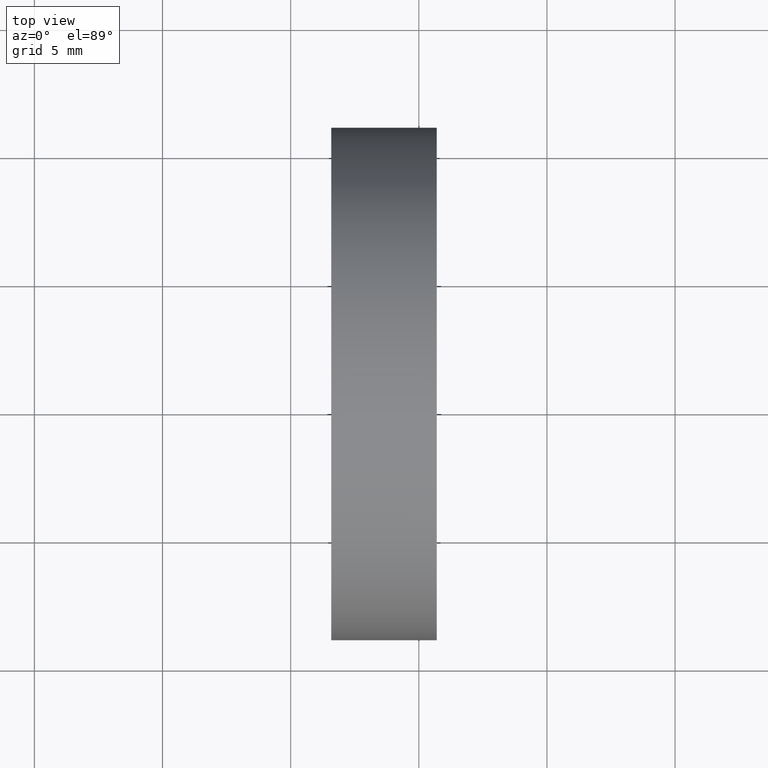
[diagram: clean part render]
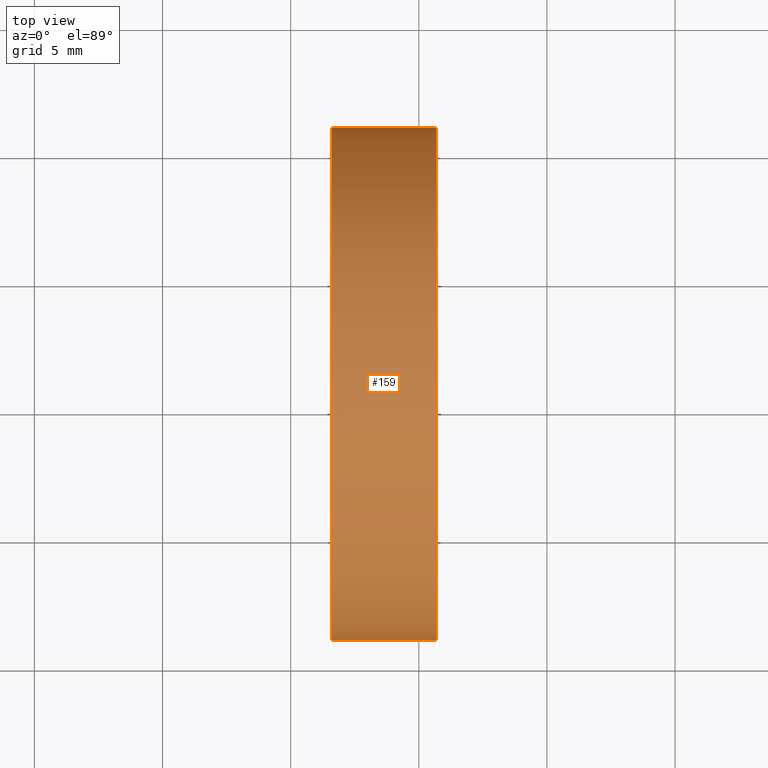
[diagram: same view with one face highlighted and labeled with its STEP entity id]
A machine part, top view. The second image highlights one B-rep face of the part: STEP entity #159.
In plain terms, the highlighted cylindrical surface (partial cylindrical patch) has radius 10 mm, axis along (-1, 0, -0).
Its self-contained STEP definition (entity closure, byte-faithful):
#1 = EDGE_LOOP ( 'NONE', ( #66, #11, #19, #53 ) ) ;
#4 = EDGE_CURVE ( 'NONE', #126, #60, #68, .T. ) ;
#7 = LINE ( 'NONE', #50, #155 ) ;
#10 = CARTESIAN_POINT ( 'NONE',  ( 46.58547009932218000, 36.02329994089732400, 1.224646799147353500E-015 ) ) ;
#11 = ORIENTED_EDGE ( 'NONE', *, *, #59, .T. ) ;
#19 = ORIENTED_EDGE ( 'NONE', *, *, #80, .F. ) ;
#25 = DIRECTION ( 'NONE',  ( -6.938893903907229400E-016, -1.000000000000000000, 0.0000000000000000000 ) ) ;
#26 = DIRECTION ( 'NONE',  ( -1.000000000000000000, 8.116490868597533400E-016, -0.0000000000000000000 ) ) ;
#36 = DIRECTION ( 'NONE',  ( -1.000000000000000000, 8.116490868597533400E-016, -0.0000000000000000000 ) ) ;
#39 = CARTESIAN_POINT ( 'NONE',  ( 50.69889669901972700, 16.02329994089733100, 0.0000000000000000000 ) ) ;
#42 = CIRCLE ( 'NONE', #148, 10.00000000000000200 ) ;
#50 = CARTESIAN_POINT ( 'NONE',  ( 44.70483367244224800, 36.02329994089732400, 1.224646799147353300E-015 ) ) ;
#51 = CARTESIAN_POINT ( 'NONE',  ( 46.58547009932217300, 26.02329994089732800, 0.0000000000000000000 ) ) ;
#53 = ORIENTED_EDGE ( 'NONE', *, *, #4, .F. ) ;
#59 = EDGE_CURVE ( 'NONE', #147, #121, #7, .T. ) ;
#60 = VERTEX_POINT ( 'NONE', #123 ) ;
#62 = DIRECTION ( 'NONE',  ( -1.000000000000000000, 8.116490868597533400E-016, -0.0000000000000000000 ) ) ;
#65 = EDGE_CURVE ( 'NONE', #126, #147, #42, .T. ) ;
#66 = ORIENTED_EDGE ( 'NONE', *, *, #65, .T. ) ;
#68 = LINE ( 'NONE', #120, #89 ) ;
#74 = DIRECTION ( 'NONE',  ( -6.938893903907227400E-016, -1.000000000000000000, 0.0000000000000000000 ) ) ;
#80 = EDGE_CURVE ( 'NONE', #60, #121, #117, .T. ) ;
#82 = FACE_OUTER_BOUND ( 'NONE', #1, .T. ) ;
#87 = CARTESIAN_POINT ( 'NONE',  ( 50.69889669901973400, 26.02329994089732400, 0.0000000000000000000 ) ) ;
#88 = AXIS2_PLACEMENT_3D ( 'NONE', #92, #62, #144 ) ;
#89 = VECTOR ( 'NONE', #36, 1000.000000000000000 ) ;
#92 = CARTESIAN_POINT ( 'NONE',  ( 44.70483367244224100, 26.02329994089732800, 0.0000000000000000000 ) ) ;
#94 = CYLINDRICAL_SURFACE ( 'NONE', #88, 9.999999999999998200 ) ;
#97 = AXIS2_PLACEMENT_3D ( 'NONE', #51, #110, #25 ) ;
#110 = DIRECTION ( 'NONE',  ( -1.000000000000000000, 8.116490868597533400E-016, -0.0000000000000000000 ) ) ;
#117 = CIRCLE ( 'NONE', #97, 9.999999999999998200 ) ;
#120 = CARTESIAN_POINT ( 'NONE',  ( 44.70483367244223400, 16.02329994089733100, 0.0000000000000000000 ) ) ;
#121 = VERTEX_POINT ( 'NONE', #10 ) ;
#123 = CARTESIAN_POINT ( 'NONE',  ( 46.58547009932216600, 16.02329994089733100, 0.0000000000000000000 ) ) ;
#124 = CARTESIAN_POINT ( 'NONE',  ( 50.69889669901974800, 36.02329994089732400, 1.224646799147352700E-015 ) ) ;
#126 = VERTEX_POINT ( 'NONE', #39 ) ;
#142 = DIRECTION ( 'NONE',  ( -1.000000000000000000, 8.116490868597533400E-016, -0.0000000000000000000 ) ) ;
#144 = DIRECTION ( 'NONE',  ( -6.938893903907229400E-016, -1.000000000000000000, 0.0000000000000000000 ) ) ;
#147 = VERTEX_POINT ( 'NONE', #124 ) ;
#148 = AXIS2_PLACEMENT_3D ( 'NONE', #87, #142, #74 ) ;
#155 = VECTOR ( 'NONE', #26, 1000.000000000000000 ) ;
#159 = ADVANCED_FACE ( 'NONE', ( #82 ), #94, .T. ) ;